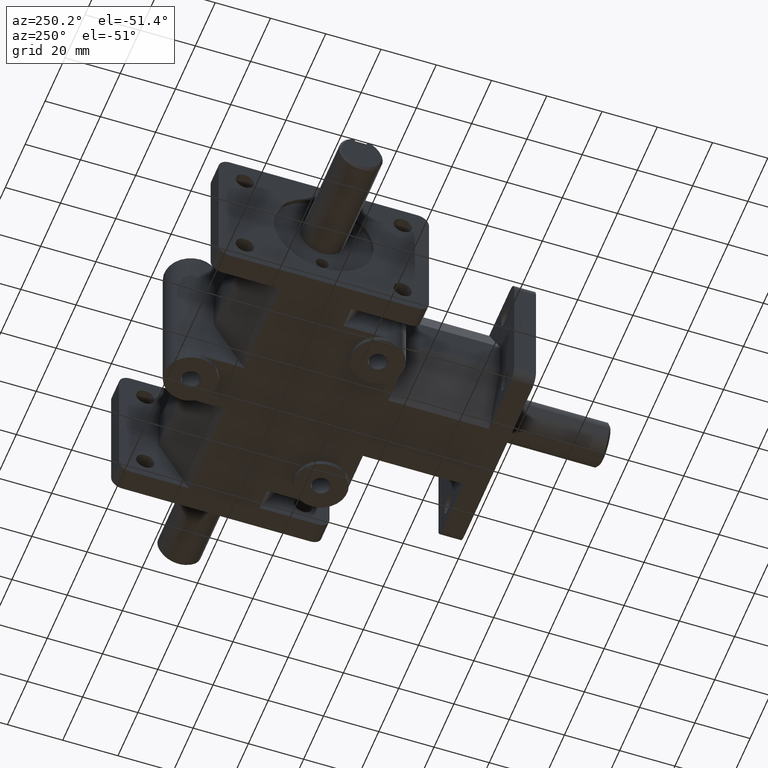
[diagram: clean part render]
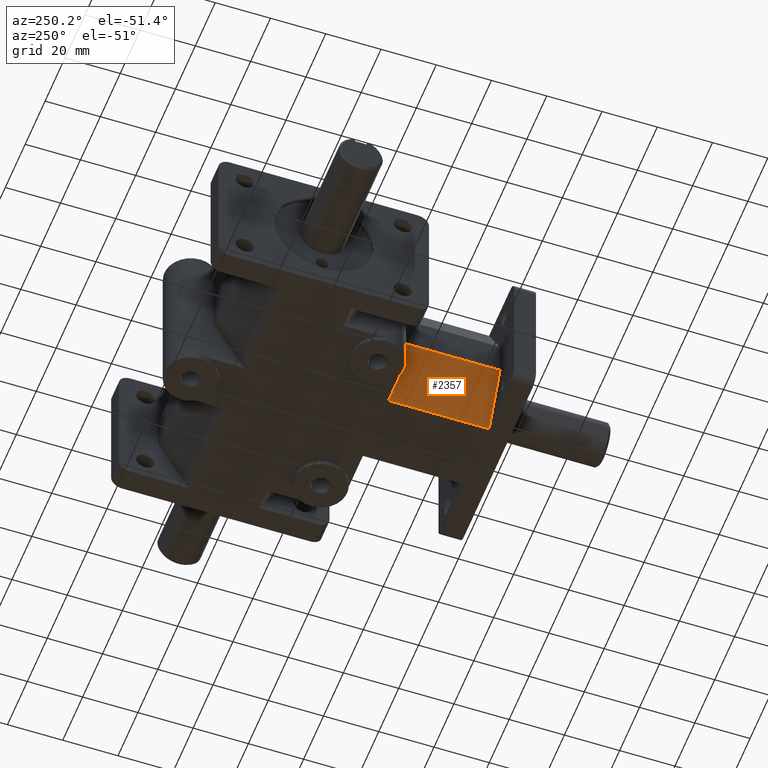
[diagram: same view with one face highlighted and labeled with its STEP entity id]
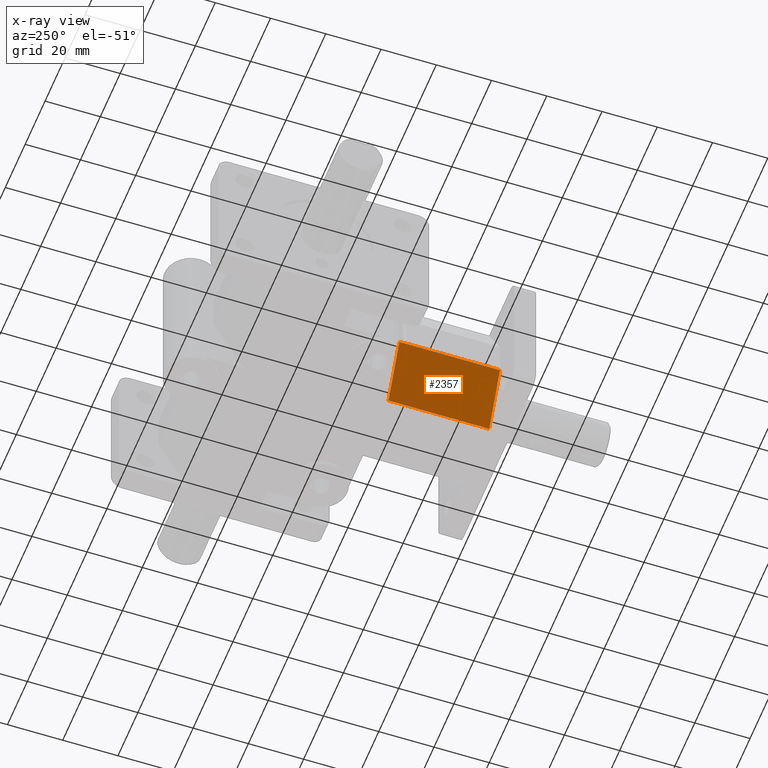
[diagram: x-ray of the same camera — body ghosted, the highlighted face saturated]
A machine part, auxiliary view. The second image highlights one B-rep face of the part: STEP entity #2357.
The next image is the same camera in x-ray: the body ghosted, the highlighted face saturated — about 0% of this face is hidden behind the body in this view.
In plain terms, the highlighted planar face has unit normal (-0.866, 0, -0.5).
Its self-contained STEP definition (entity closure, byte-faithful):
#116=PLANE('',#2593);
#238=FACE_OUTER_BOUND('',#390,.T.);
#390=EDGE_LOOP('',(#2007,#2008,#2009,#2010));
#488=LINE('',#3527,#710);
#531=LINE('',#3636,#753);
#632=LINE('',#3925,#854);
#633=LINE('',#3926,#855);
#710=VECTOR('',#2837,0.999999999999999);
#753=VECTOR('',#2926,1.);
#854=VECTOR('',#3193,0.999999999999999);
#855=VECTOR('',#3194,1.);
#1073=VERTEX_POINT('',#3524);
#1074=VERTEX_POINT('',#3526);
#1117=VERTEX_POINT('',#3635);
#1204=VERTEX_POINT('',#3924);
#1304=EDGE_CURVE('',#1074,#1073,#488,.F.);
#1364=EDGE_CURVE('',#1117,#1074,#531,.T.);
#1502=EDGE_CURVE('',#1204,#1117,#632,.F.);
#1503=EDGE_CURVE('',#1073,#1204,#633,.T.);
#2007=ORIENTED_EDGE('',*,*,#1502,.T.);
#2008=ORIENTED_EDGE('',*,*,#1364,.T.);
#2009=ORIENTED_EDGE('',*,*,#1304,.T.);
#2010=ORIENTED_EDGE('',*,*,#1503,.T.);
#2357=ADVANCED_FACE('',(#238),#116,.T.);
#2593=AXIS2_PLACEMENT_3D('',#3923,#3191,#3192);
#2837=DIRECTION('',(0.500000258168844,0.,-0.866025254730536));
#2926=DIRECTION('',(0.,-1.,0.));
#3191=DIRECTION('center_axis',(-0.866025254730536,0.,-0.500000258168844));
#3192=DIRECTION('ref_axis',(0.,1.,0.));
#3193=DIRECTION('',(-0.500000258168844,0.,0.866025254730536));
#3194=DIRECTION('',(0.,1.,0.));
#3524=CARTESIAN_POINT('',(-0.9375,0.31,-0.25));
#3526=CARTESIAN_POINT('',(-0.504487,0.31,-1.));
#3527=CARTESIAN_POINT('',(-0.883373356368251,0.31,-0.343750032271114));
#3635=CARTESIAN_POINT('',(-0.504487,1.745,-1.));
#3636=CARTESIAN_POINT('',(-0.504487,2.08621389024368,-1.));
#3923=CARTESIAN_POINT('Origin',(-0.7209935,2.08621389024368,-0.625));
#3924=CARTESIAN_POINT('',(-0.9375,1.745,-0.25));
#3925=CARTESIAN_POINT('',(-0.907435881217009,1.745,-0.30207254536756));
#3926=CARTESIAN_POINT('',(-0.9375,2.08621389024368,-0.25));